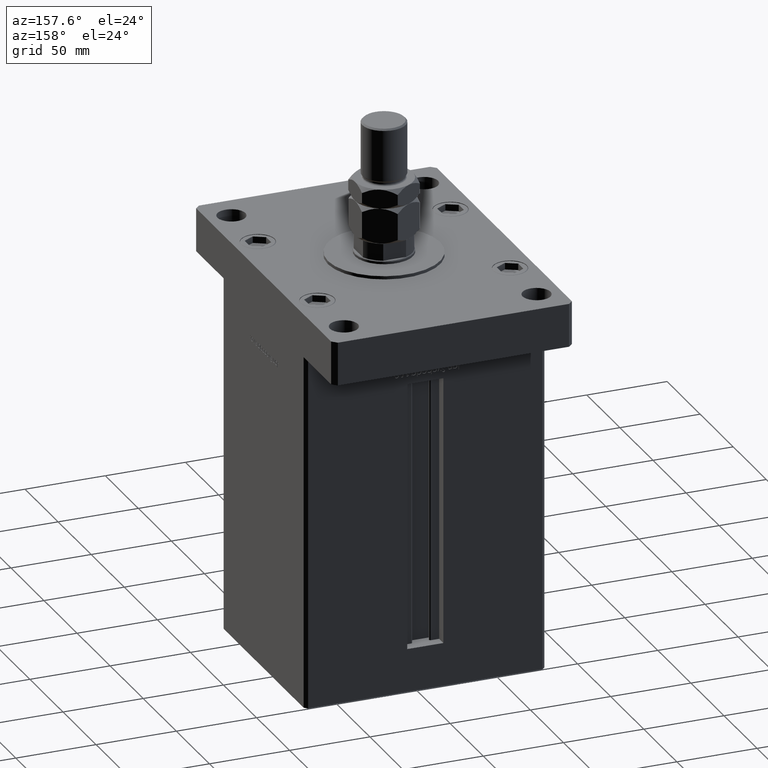
[diagram: clean part render]
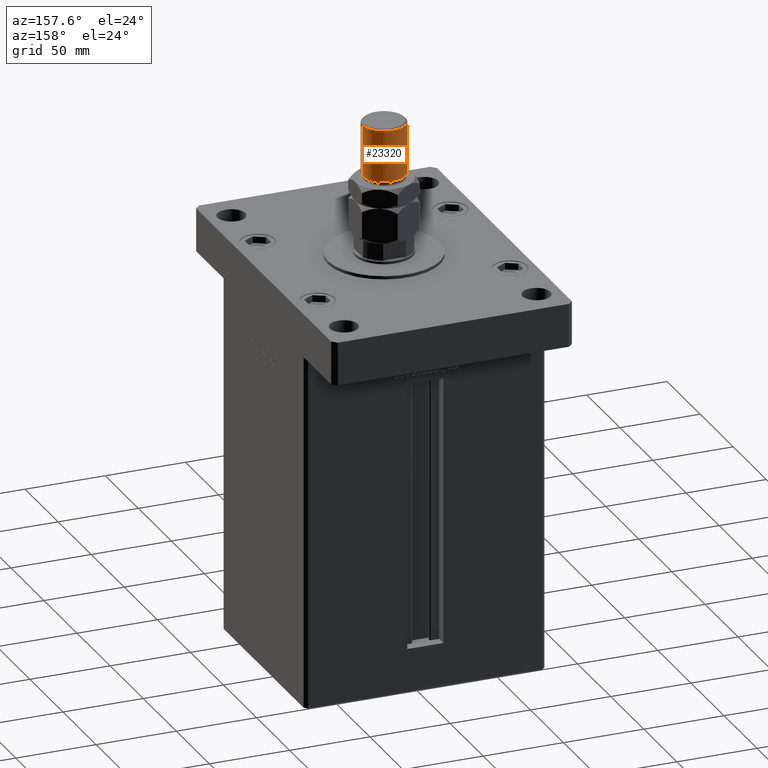
[diagram: same view with one face highlighted and labeled with its STEP entity id]
A machine part, auxiliary view. The second image highlights one B-rep face of the part: STEP entity #23320.
In plain terms, the highlighted cylindrical surface (edge-blend (fillet) strip) has radius 13.5 mm, axis along (-0, -0, -1).
Its self-contained STEP definition (entity closure, byte-faithful):
#2544 = VERTEX_POINT ( 'NONE', #25741 ) ;
#4160 = EDGE_CURVE ( 'NONE', #46722, #28507, #35497, .T. ) ;
#6445 = CARTESIAN_POINT ( 'NONE',  ( 0.000000000000000000, 0.000000000000000000, 70.00000000000000000 ) ) ;
#6841 = ORIENTED_EDGE ( 'NONE', *, *, #54804, .T. ) ;
#9354 = EDGE_CURVE ( 'NONE', #46722, #2544, #34859, .T. ) ;
#14955 = EDGE_CURVE ( 'NONE', #28507, #21652, #26486, .T. ) ;
#15122 = DIRECTION ( 'NONE',  ( 0.000000000000000000, 0.000000000000000000, -1.000000000000000000 ) ) ;
#16326 = CARTESIAN_POINT ( 'NONE',  ( 13.50000000000000000, 1.653273178848926867E-15, 37.00000000000000000 ) ) ;
#16923 = DIRECTION ( 'NONE',  ( -0.000000000000000000, -0.000000000000000000, 1.000000000000000000 ) ) ;
#18827 = AXIS2_PLACEMENT_3D ( 'NONE', #39118, #16923, #21622 ) ;
#19948 = AXIS2_PLACEMENT_3D ( 'NONE', #6445, #31402, #48350 ) ;
#21622 = DIRECTION ( 'NONE',  ( 1.000000000000000000, 0.000000000000000000, 0.000000000000000000 ) ) ;
#21652 = VERTEX_POINT ( 'NONE', #16326 ) ;
#22785 = CARTESIAN_POINT ( 'NONE',  ( 13.50000000000000000, 1.653273178848926867E-15, 68.99999999999998579 ) ) ;
#23320 = ADVANCED_FACE ( 'NONE', ( #32211 ), #48617, .T. ) ;
#25398 = CARTESIAN_POINT ( 'NONE',  ( 13.50000000000000000, 1.653273178848926867E-15, 70.00000000000000000 ) ) ;
#25741 = CARTESIAN_POINT ( 'NONE',  ( -13.50000000000000000, 0.000000000000000000, 37.00000000000000000 ) ) ;
#26486 = LINE ( 'NONE', #25398, #34972 ) ;
#26557 = ORIENTED_EDGE ( 'NONE', *, *, #14955, .T. ) ;
#27516 = AXIS2_PLACEMENT_3D ( 'NONE', #52609, #15122, #39836 ) ;
#28507 = VERTEX_POINT ( 'NONE', #22785 ) ;
#28717 = EDGE_LOOP ( 'NONE', ( #49453, #26557, #6841, #50308 ) ) ;
#31402 = DIRECTION ( 'NONE',  ( -0.000000000000000000, -0.000000000000000000, -1.000000000000000000 ) ) ;
#32211 = FACE_OUTER_BOUND ( 'NONE', #28717, .T. ) ;
#33922 = CARTESIAN_POINT ( 'NONE',  ( -13.50000000000000000, 0.000000000000000000, 68.99999999999998579 ) ) ;
#34859 = LINE ( 'NONE', #51795, #50747 ) ;
#34972 = VECTOR ( 'NONE', #50667, 1000.000000000000000 ) ;
#35497 = CIRCLE ( 'NONE', #27516, 13.50000000000000000 ) ;
#39118 = CARTESIAN_POINT ( 'NONE',  ( 0.000000000000000000, 0.000000000000000000, 37.00000000000000000 ) ) ;
#39836 = DIRECTION ( 'NONE',  ( 1.000000000000000000, 0.000000000000000000, 0.000000000000000000 ) ) ;
#44528 = CIRCLE ( 'NONE', #18827, 13.50000000000000000 ) ;
#46722 = VERTEX_POINT ( 'NONE', #33922 ) ;
#47631 = DIRECTION ( 'NONE',  ( -0.000000000000000000, -0.000000000000000000, -1.000000000000000000 ) ) ;
#48350 = DIRECTION ( 'NONE',  ( -1.000000000000000000, 0.000000000000000000, 0.000000000000000000 ) ) ;
#48617 = CYLINDRICAL_SURFACE ( 'NONE', #19948, 13.50000000000000000 ) ;
#49453 = ORIENTED_EDGE ( 'NONE', *, *, #4160, .T. ) ;
#50308 = ORIENTED_EDGE ( 'NONE', *, *, #9354, .F. ) ;
#50667 = DIRECTION ( 'NONE',  ( -0.000000000000000000, -0.000000000000000000, -1.000000000000000000 ) ) ;
#50747 = VECTOR ( 'NONE', #47631, 1000.000000000000000 ) ;
#51795 = CARTESIAN_POINT ( 'NONE',  ( -13.50000000000000000, 0.000000000000000000, 70.00000000000000000 ) ) ;
#52609 = CARTESIAN_POINT ( 'NONE',  ( 0.000000000000000000, 0.000000000000000000, 68.99999999999998579 ) ) ;
#54804 = EDGE_CURVE ( 'NONE', #21652, #2544, #44528, .T. ) ;